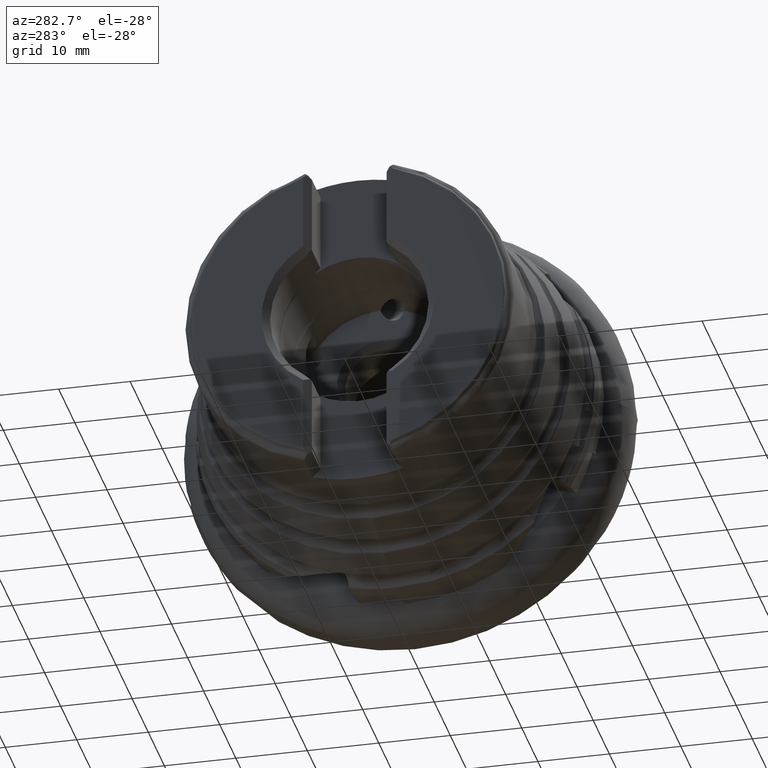
[diagram: clean part render]
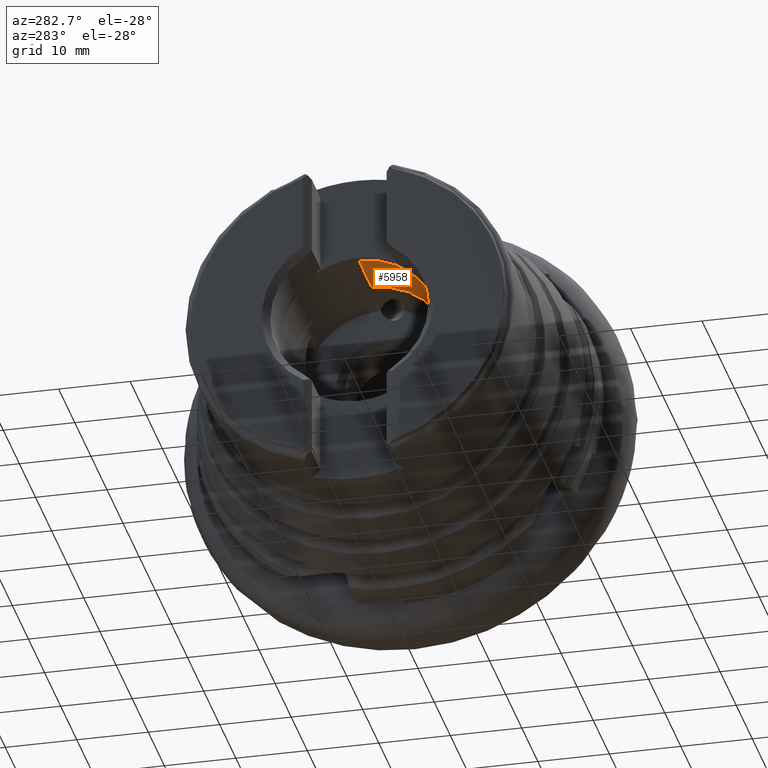
[diagram: same view with one face highlighted and labeled with its STEP entity id]
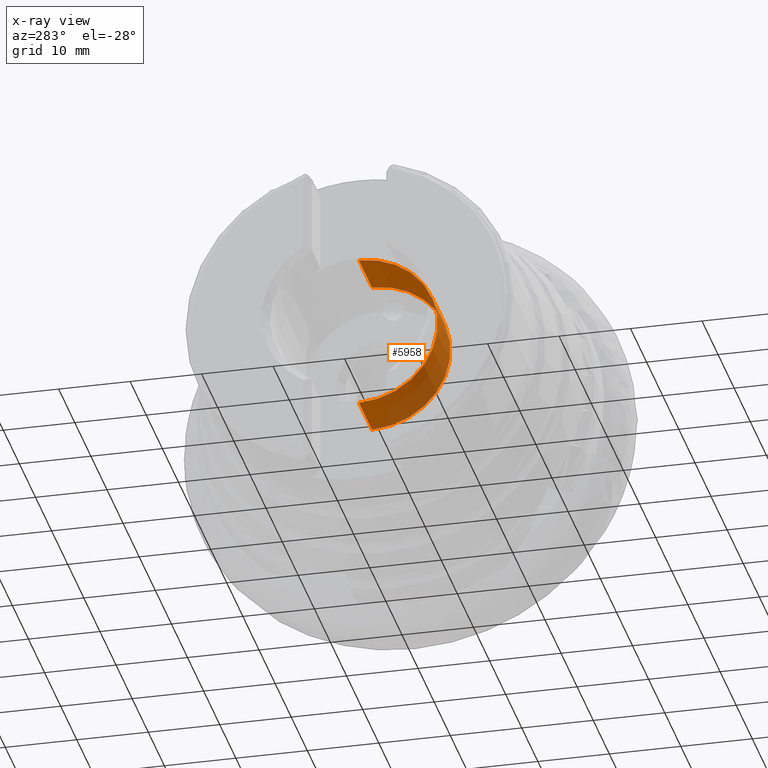
[diagram: x-ray of the same camera — body ghosted, the highlighted face saturated]
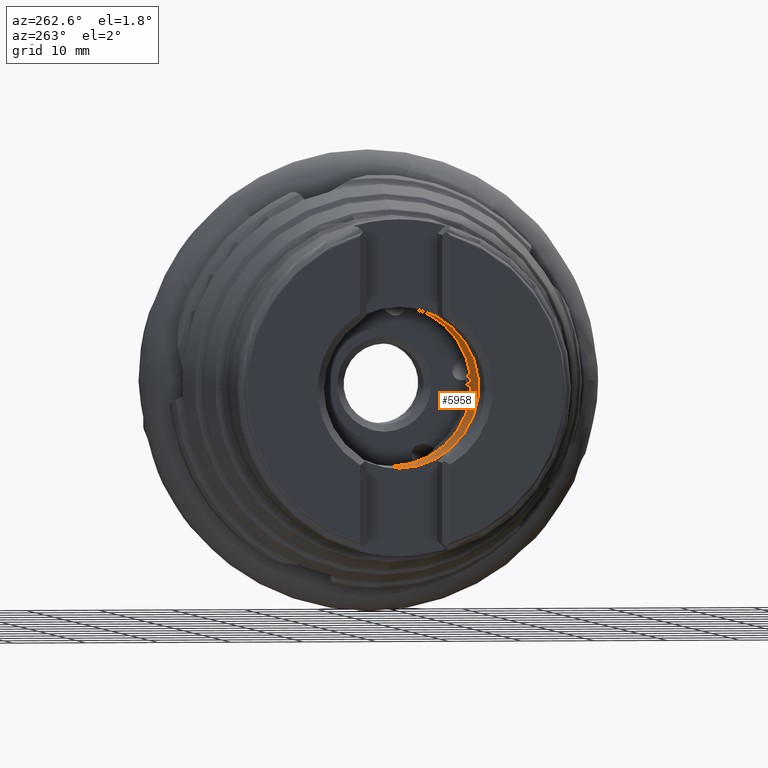
[diagram: same view with one face highlighted and labeled with its STEP entity id]
A machine part, auxiliary view. The second image highlights one B-rep face of the part: STEP entity #5958.
The next image is the same camera in x-ray: the body ghosted, the highlighted face saturated — about 38% of this face is hidden behind the body in this view.
A second angle (auxiliary view) of the same face is appended — the face is thin or edge-on in the first view.
In plain terms, the highlighted cylindrical surface (partial cylindrical patch) has radius 11 mm, axis along (1, -0, -0).
Its self-contained STEP definition (entity closure, byte-faithful):
#385 = CARTESIAN_POINT ( 'NONE',  ( 0.0000000000000000000, 0.0000000000000000000, -10.99999999999999600 ) ) ;
#777 = EDGE_CURVE ( 'NONE', #4497, #3885, #7069, .T. ) ;
#794 = ORIENTED_EDGE ( 'NONE', *, *, #5783, .F. ) ;
#800 = DIRECTION ( 'NONE',  ( 1.000000000000000000, -0.0000000000000000000, -0.0000000000000000000 ) ) ;
#1286 = DIRECTION ( 'NONE',  ( 1.000000000000000000, -0.0000000000000000000, -0.0000000000000000000 ) ) ;
#1482 = ORIENTED_EDGE ( 'NONE', *, *, #6140, .T. ) ;
#1508 = LINE ( 'NONE', #6648, #6411 ) ;
#1616 = AXIS2_PLACEMENT_3D ( 'NONE', #7593, #3426, #7002 ) ;
#1718 = AXIS2_PLACEMENT_3D ( 'NONE', #6752, #1286, #8933 ) ;
#1923 = EDGE_CURVE ( 'NONE', #4497, #5571, #1508, .T. ) ;
#1931 = DIRECTION ( 'NONE',  ( 1.000000000000000000, -0.0000000000000000000, -0.0000000000000000000 ) ) ;
#2152 = LINE ( 'NONE', #385, #8135 ) ;
#2407 = ORIENTED_EDGE ( 'NONE', *, *, #777, .F. ) ;
#2914 = CARTESIAN_POINT ( 'NONE',  ( -28.70000000000000300, 0.0000000000000000000, 0.0000000000000000000 ) ) ;
#3159 = CARTESIAN_POINT ( 'NONE',  ( -36.75000000000000700, 1.347111479062087800E-015, 10.99999999999999500 ) ) ;
#3426 = DIRECTION ( 'NONE',  ( 1.000000000000000000, -0.0000000000000000000, -0.0000000000000000000 ) ) ;
#3885 = VERTEX_POINT ( 'NONE', #4757 ) ;
#4497 = VERTEX_POINT ( 'NONE', #3159 ) ;
#4510 = EDGE_LOOP ( 'NONE', ( #2407, #6764, #1482, #794 ) ) ;
#4757 = CARTESIAN_POINT ( 'NONE',  ( -36.75000000000000700, 0.0000000000000000000, -10.99999999999999500 ) ) ;
#4989 = FACE_OUTER_BOUND ( 'NONE', #4510, .T. ) ;
#5329 = DIRECTION ( 'NONE',  ( 1.000000000000000000, -0.0000000000000000000, -0.0000000000000000000 ) ) ;
#5571 = VERTEX_POINT ( 'NONE', #7411 ) ;
#5609 = AXIS2_PLACEMENT_3D ( 'NONE', #2914, #800, #5682 ) ;
#5682 = DIRECTION ( 'NONE',  ( 0.0000000000000000000, 0.0000000000000000000, -1.000000000000000000 ) ) ;
#5783 = EDGE_CURVE ( 'NONE', #3885, #6860, #2152, .T. ) ;
#5958 = ADVANCED_FACE ( 'NONE', ( #4989 ), #7283, .F. ) ;
#6140 = EDGE_CURVE ( 'NONE', #5571, #6860, #6637, .T. ) ;
#6411 = VECTOR ( 'NONE', #1931, 1000.000000000000000 ) ;
#6637 = CIRCLE ( 'NONE', #5609, 10.99999999999999600 ) ;
#6648 = CARTESIAN_POINT ( 'NONE',  ( 0.0000000000000000000, 1.347111479062088000E-015, 10.99999999999999600 ) ) ;
#6752 = CARTESIAN_POINT ( 'NONE',  ( 0.0000000000000000000, 0.0000000000000000000, 0.0000000000000000000 ) ) ;
#6764 = ORIENTED_EDGE ( 'NONE', *, *, #1923, .T. ) ;
#6860 = VERTEX_POINT ( 'NONE', #8286 ) ;
#7002 = DIRECTION ( 'NONE',  ( 0.0000000000000000000, 0.0000000000000000000, -1.000000000000000000 ) ) ;
#7069 = CIRCLE ( 'NONE', #1616, 10.99999999999999500 ) ;
#7283 = CYLINDRICAL_SURFACE ( 'NONE', #1718, 10.99999999999999600 ) ;
#7411 = CARTESIAN_POINT ( 'NONE',  ( -28.70000000000000300, 1.356296330055693200E-015, 10.99999999999999600 ) ) ;
#7593 = CARTESIAN_POINT ( 'NONE',  ( -36.75000000000000700, 0.0000000000000000000, 0.0000000000000000000 ) ) ;
#8135 = VECTOR ( 'NONE', #5329, 1000.000000000000000 ) ;
#8286 = CARTESIAN_POINT ( 'NONE',  ( -28.70000000000000300, 0.0000000000000000000, -10.99999999999999600 ) ) ;
#8933 = DIRECTION ( 'NONE',  ( 0.0000000000000000000, 0.0000000000000000000, -1.000000000000000000 ) ) ;